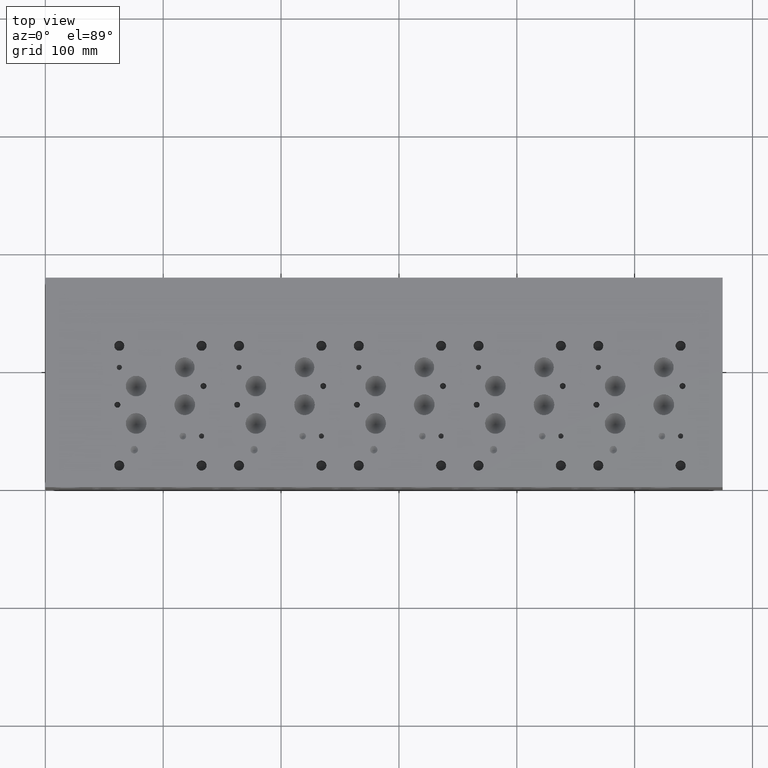
[diagram: clean part render]
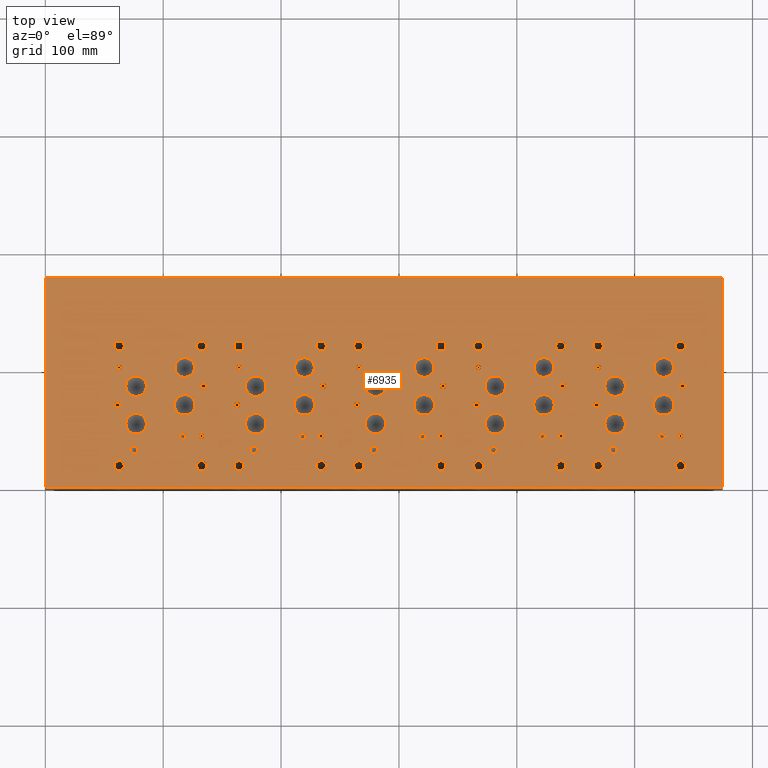
[diagram: same view with one face highlighted and labeled with its STEP entity id]
A machine part, top view. The second image highlights one B-rep face of the part: STEP entity #6935.
In plain terms, the highlighted planar face has unit normal (0, 0, 1).
Its self-contained STEP definition (entity closure, byte-faithful):
#247=CARTESIAN_POINT('',(525.86889999999994,43.2562,152.40000000000003));
#248=VERTEX_POINT('',#247);
#249=CARTESIAN_POINT('',(523.08759999999995,43.2562,152.40000000000003));
#250=DIRECTION('',(0.0,0.0,-1.0));
#251=DIRECTION('',(1.0,0.0,0.0));
#252=AXIS2_PLACEMENT_3D('',#249,#250,#251);
#253=CIRCLE('',#252,2.781299999999973);
#254=EDGE_CURVE('',#248,#248,#253,.T.);
#654=CARTESIAN_POINT('',(484.9622,31.750000000000004,152.40000000000003));
#655=VERTEX_POINT('',#654);
#656=CARTESIAN_POINT('',(481.78719999999998,31.750000000000004,152.40000000000003));
#657=DIRECTION('',(0.0,0.0,-1.0));
#658=DIRECTION('',(1.0,0.0,0.0));
#659=AXIS2_PLACEMENT_3D('',#656,#657,#658);
#660=CIRCLE('',#659,3.175000000000026);
#661=EDGE_CURVE('',#655,#655,#660,.T.);
#691=CARTESIAN_POINT('',(492.125,53.975000000000009,152.40000000000003));
#692=VERTEX_POINT('',#691);
#693=CARTESIAN_POINT('',(483.38740000000001,53.975000000000009,152.40000000000003));
#694=DIRECTION('',(0.0,0.0,-1.0));
#695=DIRECTION('',(1.0,0.0,0.0));
#696=AXIS2_PLACEMENT_3D('',#693,#694,#695);
#697=CIRCLE('',#696,8.737599999999972);
#698=EDGE_CURVE('',#692,#692,#697,.T.);
#728=CARTESIAN_POINT('',(492.125,85.724999999999994,152.40000000000003));
#729=VERTEX_POINT('',#728);
#730=CARTESIAN_POINT('',(483.38740000000001,85.724999999999994,152.40000000000003));
#731=DIRECTION('',(0.0,0.0,-1.0));
#732=DIRECTION('',(1.0,0.0,0.0));
#733=AXIS2_PLACEMENT_3D('',#730,#731,#732);
#734=CIRCLE('',#733,8.737599999999972);
#735=EDGE_CURVE('',#729,#729,#734,.T.);
#765=CARTESIAN_POINT('',(532.99360000000001,101.59999999999999,152.40000000000003));
#766=VERTEX_POINT('',#765);
#767=CARTESIAN_POINT('',(524.66240000000005,101.59999999999999,152.40000000000003));
#768=DIRECTION('',(0.0,0.0,-1.0));
#769=DIRECTION('',(1.0,0.0,0.0));
#770=AXIS2_PLACEMENT_3D('',#767,#768,#769);
#771=CIRCLE('',#770,8.33120000000001);
#772=EDGE_CURVE('',#766,#766,#771,.T.);
#802=CARTESIAN_POINT('',(533.40000000000009,69.849999999999994,152.40000000000003));
#803=VERTEX_POINT('',#802);
#804=CARTESIAN_POINT('',(524.66240000000005,69.849999999999994,152.40000000000003));
#805=DIRECTION('',(0.0,0.0,-1.0));
#806=DIRECTION('',(1.0,0.0,0.0));
#807=AXIS2_PLACEMENT_3D('',#804,#805,#806);
#808=CIRCLE('',#807,8.737599999999972);
#809=EDGE_CURVE('',#803,#803,#808,.T.);
#839=CARTESIAN_POINT('',(541.12160000000006,43.2562,152.40000000000003));
#840=VERTEX_POINT('',#839);
#841=CARTESIAN_POINT('',(538.93720000000008,43.2562,152.40000000000003));
#842=DIRECTION('',(0.0,0.0,-1.0));
#843=DIRECTION('',(1.0,0.0,0.0));
#844=AXIS2_PLACEMENT_3D('',#841,#842,#843);
#845=CIRCLE('',#844,2.184400000000011);
#846=EDGE_CURVE('',#840,#840,#845,.T.);
#876=CARTESIAN_POINT('',(471.27160000000003,101.59999999999999,152.40000000000003));
#877=VERTEX_POINT('',#876);
#878=CARTESIAN_POINT('',(469.08720000000005,101.59999999999999,152.40000000000003));
#879=DIRECTION('',(0.0,0.0,-1.0));
#880=DIRECTION('',(1.0,0.0,0.0));
#881=AXIS2_PLACEMENT_3D('',#878,#879,#880);
#882=CIRCLE('',#881,2.184400000000011);
#883=EDGE_CURVE('',#877,#877,#882,.T.);
#913=CARTESIAN_POINT('',(543.03930000000014,85.724999999999994,152.40000000000003));
#914=VERTEX_POINT('',#913);
#915=CARTESIAN_POINT('',(540.53740000000005,85.724999999999994,152.40000000000003));
#916=DIRECTION('',(0.0,0.0,-1.0));
#917=DIRECTION('',(1.0,0.0,0.0));
#918=AXIS2_PLACEMENT_3D('',#915,#916,#917);
#919=CIRCLE('',#918,2.501900000000035);
#920=EDGE_CURVE('',#914,#914,#919,.T.);
#950=CARTESIAN_POINT('',(470.01430000000005,69.849999999999994,152.40000000000003));
#951=VERTEX_POINT('',#950);
#952=CARTESIAN_POINT('',(467.51240000000001,69.849999999999994,152.40000000000003));
#953=DIRECTION('',(0.0,0.0,-1.0));
#954=DIRECTION('',(1.0,0.0,0.0));
#955=AXIS2_PLACEMENT_3D('',#952,#953,#954);
#956=CIRCLE('',#955,2.501900000000035);
#957=EDGE_CURVE('',#951,#951,#956,.T.);
#987=CARTESIAN_POINT('',(473.3417,18.262599999999999,152.40000000000003));
#988=VERTEX_POINT('',#987);
#989=CARTESIAN_POINT('',(469.08720000000005,18.262599999999999,152.40000000000003));
#990=DIRECTION('',(0.0,0.0,-1.0));
#991=DIRECTION('',(1.0,0.0,0.0));
#992=AXIS2_PLACEMENT_3D('',#989,#990,#991);
#993=CIRCLE('',#992,4.254499999999979);
#994=EDGE_CURVE('',#988,#988,#993,.T.);
#1024=CARTESIAN_POINT('',(543.19169999999997,18.262599999999999,152.40000000000003));
#1025=VERTEX_POINT('',#1024);
#1026=CARTESIAN_POINT('',(538.93720000000008,18.262599999999999,152.40000000000003));
#1027=DIRECTION('',(0.0,0.0,-1.0));
#1028=DIRECTION('',(1.0,0.0,0.0));
#1029=AXIS2_PLACEMENT_3D('',#1026,#1027,#1028);
#1030=CIRCLE('',#1029,4.254499999999979);
#1031=EDGE_CURVE('',#1025,#1025,#1030,.T.);
#1061=CARTESIAN_POINT('',(543.19169999999997,119.86260000000001,152.40000000000003));
#1062=VERTEX_POINT('',#1061);
#1063=CARTESIAN_POINT('',(538.93720000000008,119.86260000000001,152.40000000000003));
#1064=DIRECTION('',(0.0,0.0,-1.0));
#1065=DIRECTION('',(1.0,0.0,0.0));
#1066=AXIS2_PLACEMENT_3D('',#1063,#1064,#1065);
#1067=CIRCLE('',#1066,4.254499999999979);
#1068=EDGE_CURVE('',#1062,#1062,#1067,.T.);
#1098=CARTESIAN_POINT('',(473.3417,119.86260000000001,152.40000000000003));
#1099=VERTEX_POINT('',#1098);
#1100=CARTESIAN_POINT('',(469.08720000000005,119.86260000000001,152.40000000000003));
#1101=DIRECTION('',(0.0,0.0,-1.0));
#1102=DIRECTION('',(1.0,0.0,0.0));
#1103=AXIS2_PLACEMENT_3D('',#1100,#1101,#1102);
#1104=CIRCLE('',#1103,4.254499999999979);
#1105=EDGE_CURVE('',#1099,#1099,#1104,.T.);
#1292=CARTESIAN_POINT('',(424.26890000000003,43.2562,152.40000000000003));
#1293=VERTEX_POINT('',#1292);
#1294=CARTESIAN_POINT('',(421.48760000000004,43.2562,152.40000000000003));
#1295=DIRECTION('',(0.0,0.0,-1.0));
#1296=DIRECTION('',(1.0,0.0,0.0));
#1297=AXIS2_PLACEMENT_3D('',#1294,#1295,#1296);
#1298=CIRCLE('',#1297,2.781299999999973);
#1299=EDGE_CURVE('',#1293,#1293,#1298,.T.);
#1699=CARTESIAN_POINT('',(383.36220000000003,31.750000000000004,152.40000000000003));
#1700=VERTEX_POINT('',#1699);
#1701=CARTESIAN_POINT('',(380.18720000000002,31.750000000000004,152.40000000000003));
#1702=DIRECTION('',(0.0,0.0,-1.0));
#1703=DIRECTION('',(1.0,0.0,0.0));
#1704=AXIS2_PLACEMENT_3D('',#1701,#1702,#1703);
#1705=CIRCLE('',#1704,3.175000000000026);
#1706=EDGE_CURVE('',#1700,#1700,#1705,.T.);
#1736=CARTESIAN_POINT('',(390.52499999999998,53.975000000000009,152.40000000000003));
#1737=VERTEX_POINT('',#1736);
#1738=CARTESIAN_POINT('',(381.78739999999999,53.975000000000009,152.40000000000003));
#1739=DIRECTION('',(0.0,0.0,-1.0));
#1740=DIRECTION('',(1.0,0.0,0.0));
#1741=AXIS2_PLACEMENT_3D('',#1738,#1739,#1740);
#1742=CIRCLE('',#1741,8.737599999999972);
#1743=EDGE_CURVE('',#1737,#1737,#1742,.T.);
#1773=CARTESIAN_POINT('',(390.52499999999998,85.724999999999994,152.40000000000003));
#1774=VERTEX_POINT('',#1773);
#1775=CARTESIAN_POINT('',(381.78739999999999,85.724999999999994,152.40000000000003));
#1776=DIRECTION('',(0.0,0.0,-1.0));
#1777=DIRECTION('',(1.0,0.0,0.0));
#1778=AXIS2_PLACEMENT_3D('',#1775,#1776,#1777);
#1779=CIRCLE('',#1778,8.737599999999972);
#1780=EDGE_CURVE('',#1774,#1774,#1779,.T.);
#1810=CARTESIAN_POINT('',(431.39360000000005,101.59999999999999,152.40000000000003));
#1811=VERTEX_POINT('',#1810);
#1812=CARTESIAN_POINT('',(423.06240000000003,101.59999999999999,152.40000000000003));
#1813=DIRECTION('',(0.0,0.0,-1.0));
#1814=DIRECTION('',(1.0,0.0,0.0));
#1815=AXIS2_PLACEMENT_3D('',#1812,#1813,#1814);
#1816=CIRCLE('',#1815,8.33120000000001);
#1817=EDGE_CURVE('',#1811,#1811,#1816,.T.);
#1847=CARTESIAN_POINT('',(431.80000000000001,69.849999999999994,152.40000000000003));
#1848=VERTEX_POINT('',#1847);
#1849=CARTESIAN_POINT('',(423.06240000000003,69.849999999999994,152.40000000000003));
#1850=DIRECTION('',(0.0,0.0,-1.0));
#1851=DIRECTION('',(1.0,0.0,0.0));
#1852=AXIS2_PLACEMENT_3D('',#1849,#1850,#1851);
#1853=CIRCLE('',#1852,8.737599999999972);
#1854=EDGE_CURVE('',#1848,#1848,#1853,.T.);
#1884=CARTESIAN_POINT('',(439.52160000000003,43.2562,152.40000000000003));
#1885=VERTEX_POINT('',#1884);
#1886=CARTESIAN_POINT('',(437.33720000000005,43.2562,152.40000000000003));
#1887=DIRECTION('',(0.0,0.0,-1.0));
#1888=DIRECTION('',(1.0,0.0,0.0));
#1889=AXIS2_PLACEMENT_3D('',#1886,#1887,#1888);
#1890=CIRCLE('',#1889,2.184400000000011);
#1891=EDGE_CURVE('',#1885,#1885,#1890,.T.);
#1921=CARTESIAN_POINT('',(369.67160000000001,101.59999999999999,152.40000000000003));
#1922=VERTEX_POINT('',#1921);
#1923=CARTESIAN_POINT('',(367.48719999999997,101.59999999999999,152.40000000000003));
#1924=DIRECTION('',(0.0,0.0,-1.0));
#1925=DIRECTION('',(1.0,0.0,0.0));
#1926=AXIS2_PLACEMENT_3D('',#1923,#1924,#1925);
#1927=CIRCLE('',#1926,2.184400000000011);
#1928=EDGE_CURVE('',#1922,#1922,#1927,.T.);
#1958=CARTESIAN_POINT('',(441.43930000000012,85.724999999999994,152.40000000000003));
#1959=VERTEX_POINT('',#1958);
#1960=CARTESIAN_POINT('',(438.93740000000008,85.724999999999994,152.40000000000003));
#1961=DIRECTION('',(0.0,0.0,-1.0));
#1962=DIRECTION('',(1.0,0.0,0.0));
#1963=AXIS2_PLACEMENT_3D('',#1960,#1961,#1962);
#1964=CIRCLE('',#1963,2.501900000000035);
#1965=EDGE_CURVE('',#1959,#1959,#1964,.T.);
#1995=CARTESIAN_POINT('',(368.41430000000003,69.849999999999994,152.40000000000003));
#1996=VERTEX_POINT('',#1995);
#1997=CARTESIAN_POINT('',(365.91239999999999,69.849999999999994,152.40000000000003));
#1998=DIRECTION('',(0.0,0.0,-1.0));
#1999=DIRECTION('',(1.0,0.0,0.0));
#2000=AXIS2_PLACEMENT_3D('',#1997,#1998,#1999);
#2001=CIRCLE('',#2000,2.501900000000035);
#2002=EDGE_CURVE('',#1996,#1996,#2001,.T.);
#2032=CARTESIAN_POINT('',(371.74169999999998,18.262599999999999,152.40000000000003));
#2033=VERTEX_POINT('',#2032);
#2034=CARTESIAN_POINT('',(367.48719999999997,18.262599999999999,152.40000000000003));
#2035=DIRECTION('',(0.0,0.0,-1.0));
#2036=DIRECTION('',(1.0,0.0,0.0));
#2037=AXIS2_PLACEMENT_3D('',#2034,#2035,#2036);
#2038=CIRCLE('',#2037,4.254499999999979);
#2039=EDGE_CURVE('',#2033,#2033,#2038,.T.);
#2069=CARTESIAN_POINT('',(441.59170000000006,18.262599999999999,152.40000000000003));
#2070=VERTEX_POINT('',#2069);
#2071=CARTESIAN_POINT('',(437.33720000000005,18.262599999999999,152.40000000000003));
#2072=DIRECTION('',(0.0,0.0,-1.0));
#2073=DIRECTION('',(1.0,0.0,0.0));
#2074=AXIS2_PLACEMENT_3D('',#2071,#2072,#2073);
#2075=CIRCLE('',#2074,4.254499999999979);
#2076=EDGE_CURVE('',#2070,#2070,#2075,.T.);
#2106=CARTESIAN_POINT('',(441.59170000000006,119.86260000000001,152.40000000000003));
#2107=VERTEX_POINT('',#2106);
#2108=CARTESIAN_POINT('',(437.33720000000005,119.86260000000001,152.40000000000003));
#2109=DIRECTION('',(0.0,0.0,-1.0));
#2110=DIRECTION('',(1.0,0.0,0.0));
#2111=AXIS2_PLACEMENT_3D('',#2108,#2109,#2110);
#2112=CIRCLE('',#2111,4.254499999999979);
#2113=EDGE_CURVE('',#2107,#2107,#2112,.T.);
#2143=CARTESIAN_POINT('',(371.74169999999998,119.86260000000001,152.40000000000003));
#2144=VERTEX_POINT('',#2143);
#2145=CARTESIAN_POINT('',(367.48719999999997,119.86260000000001,152.40000000000003));
#2146=DIRECTION('',(0.0,0.0,-1.0));
#2147=DIRECTION('',(1.0,0.0,0.0));
#2148=AXIS2_PLACEMENT_3D('',#2145,#2146,#2147);
#2149=CIRCLE('',#2148,4.254499999999979);
#2150=EDGE_CURVE('',#2144,#2144,#2149,.T.);
#2337=CARTESIAN_POINT('',(322.66890000000001,43.2562,152.40000000000003));
#2338=VERTEX_POINT('',#2337);
#2339=CARTESIAN_POINT('',(319.88760000000002,43.2562,152.40000000000003));
#2340=DIRECTION('',(0.0,0.0,-1.0));
#2341=DIRECTION('',(1.0,0.0,0.0));
#2342=AXIS2_PLACEMENT_3D('',#2339,#2340,#2341);
#2343=CIRCLE('',#2342,2.781300000000009);
#2344=EDGE_CURVE('',#2338,#2338,#2343,.T.);
#2744=CARTESIAN_POINT('',(281.76220000000001,31.750000000000004,152.40000000000003));
#2745=VERTEX_POINT('',#2744);
#2746=CARTESIAN_POINT('',(278.5872,31.750000000000004,152.40000000000003));
#2747=DIRECTION('',(0.0,0.0,-1.0));
#2748=DIRECTION('',(1.0,0.0,0.0));
#2749=AXIS2_PLACEMENT_3D('',#2746,#2747,#2748);
#2750=CIRCLE('',#2749,3.17499999999999);
#2751=EDGE_CURVE('',#2745,#2745,#2750,.T.);
#2781=CARTESIAN_POINT('',(288.92500000000007,53.975000000000009,152.40000000000003));
#2782=VERTEX_POINT('',#2781);
#2783=CARTESIAN_POINT('',(280.18740000000003,53.975000000000009,152.40000000000003));
#2784=DIRECTION('',(0.0,0.0,-1.0));
#2785=DIRECTION('',(1.0,0.0,0.0));
#2786=AXIS2_PLACEMENT_3D('',#2783,#2784,#2785);
#2787=CIRCLE('',#2786,8.737600000000008);
#2788=EDGE_CURVE('',#2782,#2782,#2787,.T.);
#2818=CARTESIAN_POINT('',(288.92500000000007,85.724999999999994,152.40000000000003));
#2819=VERTEX_POINT('',#2818);
#2820=CARTESIAN_POINT('',(280.18740000000003,85.724999999999994,152.40000000000003));
#2821=DIRECTION('',(0.0,0.0,-1.0));
#2822=DIRECTION('',(1.0,0.0,0.0));
#2823=AXIS2_PLACEMENT_3D('',#2820,#2821,#2822);
#2824=CIRCLE('',#2823,8.737600000000008);
#2825=EDGE_CURVE('',#2819,#2819,#2824,.T.);
#2855=CARTESIAN_POINT('',(329.79359999999997,101.59999999999999,152.40000000000003));
#2856=VERTEX_POINT('',#2855);
#2857=CARTESIAN_POINT('',(321.4624,101.59999999999999,152.40000000000003));
#2858=DIRECTION('',(0.0,0.0,-1.0));
#2859=DIRECTION('',(1.0,0.0,0.0));
#2860=AXIS2_PLACEMENT_3D('',#2857,#2858,#2859);
#2861=CIRCLE('',#2860,8.33120000000001);
#2862=EDGE_CURVE('',#2856,#2856,#2861,.T.);
#2892=CARTESIAN_POINT('',(330.19999999999993,69.849999999999994,152.40000000000003));
#2893=VERTEX_POINT('',#2892);
#2894=CARTESIAN_POINT('',(321.4624,69.849999999999994,152.40000000000003));
#2895=DIRECTION('',(0.0,0.0,-1.0));
#2896=DIRECTION('',(1.0,0.0,0.0));
#2897=AXIS2_PLACEMENT_3D('',#2894,#2895,#2896);
#2898=CIRCLE('',#2897,8.737599999999972);
#2899=EDGE_CURVE('',#2893,#2893,#2898,.T.);
#2929=CARTESIAN_POINT('',(337.92160000000001,43.2562,152.40000000000003));
#2930=VERTEX_POINT('',#2929);
#2931=CARTESIAN_POINT('',(335.73720000000003,43.2562,152.40000000000003));
#2932=DIRECTION('',(0.0,0.0,-1.0));
#2933=DIRECTION('',(1.0,0.0,0.0));
#2934=AXIS2_PLACEMENT_3D('',#2931,#2932,#2933);
#2935=CIRCLE('',#2934,2.184400000000011);
#2936=EDGE_CURVE('',#2930,#2930,#2935,.T.);
#2966=CARTESIAN_POINT('',(268.07160000000005,101.59999999999999,152.40000000000003));
#2967=VERTEX_POINT('',#2966);
#2968=CARTESIAN_POINT('',(265.88720000000001,101.59999999999999,152.40000000000003));
#2969=DIRECTION('',(0.0,0.0,-1.0));
#2970=DIRECTION('',(1.0,0.0,0.0));
#2971=AXIS2_PLACEMENT_3D('',#2968,#2969,#2970);
#2972=CIRCLE('',#2971,2.184400000000011);
#2973=EDGE_CURVE('',#2967,#2967,#2972,.T.);
#3003=CARTESIAN_POINT('',(339.83930000000009,85.724999999999994,152.40000000000003));
#3004=VERTEX_POINT('',#3003);
#3005=CARTESIAN_POINT('',(337.33740000000006,85.724999999999994,152.40000000000003));
#3006=DIRECTION('',(0.0,0.0,-1.0));
#3007=DIRECTION('',(1.0,0.0,0.0));
#3008=AXIS2_PLACEMENT_3D('',#3005,#3006,#3007);
#3009=CIRCLE('',#3008,2.501900000000035);
#3010=EDGE_CURVE('',#3004,#3004,#3009,.T.);
#3040=CARTESIAN_POINT('',(266.8143,69.849999999999994,152.40000000000003));
#3041=VERTEX_POINT('',#3040);
#3042=CARTESIAN_POINT('',(264.31240000000003,69.849999999999994,152.40000000000003));
#3043=DIRECTION('',(0.0,0.0,-1.0));
#3044=DIRECTION('',(1.0,0.0,0.0));
#3045=AXIS2_PLACEMENT_3D('',#3042,#3043,#3044);
#3046=CIRCLE('',#3045,2.501899999999999);
#3047=EDGE_CURVE('',#3041,#3041,#3046,.T.);
#3077=CARTESIAN_POINT('',(270.14170000000001,18.262599999999999,152.40000000000003));
#3078=VERTEX_POINT('',#3077);
#3079=CARTESIAN_POINT('',(265.88720000000001,18.262599999999999,152.40000000000003));
#3080=DIRECTION('',(0.0,0.0,-1.0));
#3081=DIRECTION('',(1.0,0.0,0.0));
#3082=AXIS2_PLACEMENT_3D('',#3079,#3080,#3081);
#3083=CIRCLE('',#3082,4.254500000000014);
#3084=EDGE_CURVE('',#3078,#3078,#3083,.T.);
#3114=CARTESIAN_POINT('',(339.99169999999998,18.262599999999999,152.40000000000003));
#3115=VERTEX_POINT('',#3114);
#3116=CARTESIAN_POINT('',(335.73720000000003,18.262599999999999,152.40000000000003));
#3117=DIRECTION('',(0.0,0.0,-1.0));
#3118=DIRECTION('',(1.0,0.0,0.0));
#3119=AXIS2_PLACEMENT_3D('',#3116,#3117,#3118);
#3120=CIRCLE('',#3119,4.254499999999979);
#3121=EDGE_CURVE('',#3115,#3115,#3120,.T.);
#3151=CARTESIAN_POINT('',(339.99169999999998,119.86260000000001,152.40000000000003));
#3152=VERTEX_POINT('',#3151);
#3153=CARTESIAN_POINT('',(335.73720000000003,119.86260000000001,152.40000000000003));
#3154=DIRECTION('',(0.0,0.0,-1.0));
#3155=DIRECTION('',(1.0,0.0,0.0));
#3156=AXIS2_PLACEMENT_3D('',#3153,#3154,#3155);
#3157=CIRCLE('',#3156,4.254499999999979);
#3158=EDGE_CURVE('',#3152,#3152,#3157,.T.);
#3188=CARTESIAN_POINT('',(270.14170000000001,119.86260000000001,152.40000000000003));
#3189=VERTEX_POINT('',#3188);
#3190=CARTESIAN_POINT('',(265.88720000000001,119.86260000000001,152.40000000000003));
#3191=DIRECTION('',(0.0,0.0,-1.0));
#3192=DIRECTION('',(1.0,0.0,0.0));
#3193=AXIS2_PLACEMENT_3D('',#3190,#3191,#3192);
#3194=CIRCLE('',#3193,4.254500000000014);
#3195=EDGE_CURVE('',#3189,#3189,#3194,.T.);
#3382=CARTESIAN_POINT('',(221.06890000000004,43.2562,152.40000000000003));
#3383=VERTEX_POINT('',#3382);
#3384=CARTESIAN_POINT('',(218.28760000000003,43.2562,152.40000000000003));
#3385=DIRECTION('',(0.0,0.0,-1.0));
#3386=DIRECTION('',(1.0,0.0,0.0));
#3387=AXIS2_PLACEMENT_3D('',#3384,#3385,#3386);
#3388=CIRCLE('',#3387,2.781300000000009);
#3389=EDGE_CURVE('',#3383,#3383,#3388,.T.);
#3789=CARTESIAN_POINT('',(180.16220000000001,31.750000000000004,152.40000000000003));
#3790=VERTEX_POINT('',#3789);
#3791=CARTESIAN_POINT('',(176.98720000000003,31.750000000000004,152.40000000000003));
#3792=DIRECTION('',(0.0,0.0,-1.0));
#3793=DIRECTION('',(1.0,0.0,0.0));
#3794=AXIS2_PLACEMENT_3D('',#3791,#3792,#3793);
#3795=CIRCLE('',#3794,3.17499999999999);
#3796=EDGE_CURVE('',#3790,#3790,#3795,.T.);
#3826=CARTESIAN_POINT('',(187.32500000000002,53.975000000000009,152.40000000000003));
#3827=VERTEX_POINT('',#3826);
#3828=CARTESIAN_POINT('',(178.5874,53.975000000000009,152.40000000000003));
#3829=DIRECTION('',(0.0,0.0,-1.0));
#3830=DIRECTION('',(1.0,0.0,0.0));
#3831=AXIS2_PLACEMENT_3D('',#3828,#3829,#3830);
#3832=CIRCLE('',#3831,8.737600000000008);
#3833=EDGE_CURVE('',#3827,#3827,#3832,.T.);
#3863=CARTESIAN_POINT('',(187.32500000000002,85.724999999999994,152.40000000000003));
#3864=VERTEX_POINT('',#3863);
#3865=CARTESIAN_POINT('',(178.5874,85.724999999999994,152.40000000000003));
#3866=DIRECTION('',(0.0,0.0,-1.0));
#3867=DIRECTION('',(1.0,0.0,0.0));
#3868=AXIS2_PLACEMENT_3D('',#3865,#3866,#3867);
#3869=CIRCLE('',#3868,8.737600000000008);
#3870=EDGE_CURVE('',#3864,#3864,#3869,.T.);
#3900=CARTESIAN_POINT('',(228.19360000000003,101.59999999999999,152.40000000000003));
#3901=VERTEX_POINT('',#3900);
#3902=CARTESIAN_POINT('',(219.86240000000004,101.59999999999999,152.40000000000003));
#3903=DIRECTION('',(0.0,0.0,-1.0));
#3904=DIRECTION('',(1.0,0.0,0.0));
#3905=AXIS2_PLACEMENT_3D('',#3902,#3903,#3904);
#3906=CIRCLE('',#3905,8.33120000000001);
#3907=EDGE_CURVE('',#3901,#3901,#3906,.T.);
#3937=CARTESIAN_POINT('',(228.60000000000002,69.849999999999994,152.40000000000003));
#3938=VERTEX_POINT('',#3937);
#3939=CARTESIAN_POINT('',(219.86240000000004,69.849999999999994,152.40000000000003));
#3940=DIRECTION('',(0.0,0.0,-1.0));
#3941=DIRECTION('',(1.0,0.0,0.0));
#3942=AXIS2_PLACEMENT_3D('',#3939,#3940,#3941);
#3943=CIRCLE('',#3942,8.737600000000008);
#3944=EDGE_CURVE('',#3938,#3938,#3943,.T.);
#3974=CARTESIAN_POINT('',(236.32160000000002,43.2562,152.40000000000003));
#3975=VERTEX_POINT('',#3974);
#3976=CARTESIAN_POINT('',(234.13720000000001,43.2562,152.40000000000003));
#3977=DIRECTION('',(0.0,0.0,-1.0));
#3978=DIRECTION('',(1.0,0.0,0.0));
#3979=AXIS2_PLACEMENT_3D('',#3976,#3977,#3978);
#3980=CIRCLE('',#3979,2.184400000000011);
#3981=EDGE_CURVE('',#3975,#3975,#3980,.T.);
#4011=CARTESIAN_POINT('',(166.47160000000002,101.59999999999999,152.40000000000003));
#4012=VERTEX_POINT('',#4011);
#4013=CARTESIAN_POINT('',(164.28720000000001,101.59999999999999,152.40000000000003));
#4014=DIRECTION('',(0.0,0.0,-1.0));
#4015=DIRECTION('',(1.0,0.0,0.0));
#4016=AXIS2_PLACEMENT_3D('',#4013,#4014,#4015);
#4017=CIRCLE('',#4016,2.184400000000011);
#4018=EDGE_CURVE('',#4012,#4012,#4017,.T.);
#4048=CARTESIAN_POINT('',(238.23930000000001,85.724999999999994,152.40000000000003));
#4049=VERTEX_POINT('',#4048);
#4050=CARTESIAN_POINT('',(235.73740000000001,85.724999999999994,152.40000000000003));
#4051=DIRECTION('',(0.0,0.0,-1.0));
#4052=DIRECTION('',(1.0,0.0,0.0));
#4053=AXIS2_PLACEMENT_3D('',#4050,#4051,#4052);
#4054=CIRCLE('',#4053,2.501899999999999);
#4055=EDGE_CURVE('',#4049,#4049,#4054,.T.);
#4085=CARTESIAN_POINT('',(165.21430000000004,69.849999999999994,152.40000000000003));
#4086=VERTEX_POINT('',#4085);
#4087=CARTESIAN_POINT('',(162.71240000000003,69.849999999999994,152.40000000000003));
#4088=DIRECTION('',(0.0,0.0,-1.0));
#4089=DIRECTION('',(1.0,0.0,0.0));
#4090=AXIS2_PLACEMENT_3D('',#4087,#4088,#4089);
#4091=CIRCLE('',#4090,2.501899999999999);
#4092=EDGE_CURVE('',#4086,#4086,#4091,.T.);
#4122=CARTESIAN_POINT('',(168.54170000000005,18.262599999999999,152.40000000000003));
#4123=VERTEX_POINT('',#4122);
#4124=CARTESIAN_POINT('',(164.28720000000001,18.262599999999999,152.40000000000003));
#4125=DIRECTION('',(0.0,0.0,-1.0));
#4126=DIRECTION('',(1.0,0.0,0.0));
#4127=AXIS2_PLACEMENT_3D('',#4124,#4125,#4126);
#4128=CIRCLE('',#4127,4.254500000000014);
#4129=EDGE_CURVE('',#4123,#4123,#4128,.T.);
#4159=CARTESIAN_POINT('',(238.39170000000001,18.262599999999999,152.40000000000003));
#4160=VERTEX_POINT('',#4159);
#4161=CARTESIAN_POINT('',(234.13720000000001,18.262599999999999,152.40000000000003));
#4162=DIRECTION('',(0.0,0.0,-1.0));
#4163=DIRECTION('',(1.0,0.0,0.0));
#4164=AXIS2_PLACEMENT_3D('',#4161,#4162,#4163);
#4165=CIRCLE('',#4164,4.254500000000014);
#4166=EDGE_CURVE('',#4160,#4160,#4165,.T.);
#4196=CARTESIAN_POINT('',(238.39170000000001,119.86260000000001,152.40000000000003));
#4197=VERTEX_POINT('',#4196);
#4198=CARTESIAN_POINT('',(234.13720000000001,119.86260000000001,152.40000000000003));
#4199=DIRECTION('',(0.0,0.0,-1.0));
#4200=DIRECTION('',(1.0,0.0,0.0));
#4201=AXIS2_PLACEMENT_3D('',#4198,#4199,#4200);
#4202=CIRCLE('',#4201,4.254500000000014);
#4203=EDGE_CURVE('',#4197,#4197,#4202,.T.);
#4233=CARTESIAN_POINT('',(168.54170000000005,119.86260000000001,152.40000000000003));
#4234=VERTEX_POINT('',#4233);
#4235=CARTESIAN_POINT('',(164.28720000000001,119.86260000000001,152.40000000000003));
#4236=DIRECTION('',(0.0,0.0,-1.0));
#4237=DIRECTION('',(1.0,0.0,0.0));
#4238=AXIS2_PLACEMENT_3D('',#4235,#4236,#4237);
#4239=CIRCLE('',#4238,4.254500000000014);
#4240=EDGE_CURVE('',#4234,#4234,#4239,.T.);
#4427=CARTESIAN_POINT('',(119.46889999999999,43.2562,152.40000000000003));
#4428=VERTEX_POINT('',#4427);
#4429=CARTESIAN_POINT('',(116.6876,43.2562,152.40000000000003));
#4430=DIRECTION('',(0.0,0.0,-1.0));
#4431=DIRECTION('',(1.0,0.0,0.0));
#4432=AXIS2_PLACEMENT_3D('',#4429,#4430,#4431);
#4433=CIRCLE('',#4432,2.781299999999991);
#4434=EDGE_CURVE('',#4428,#4428,#4433,.T.);
#4991=CARTESIAN_POINT('',(78.562200000000018,31.750000000000004,152.40000000000003));
#4992=VERTEX_POINT('',#4991);
#4993=CARTESIAN_POINT('',(75.387200000000007,31.750000000000004,152.40000000000003));
#4994=DIRECTION('',(0.0,0.0,-1.0));
#4995=DIRECTION('',(1.0,0.0,0.0));
#4996=AXIS2_PLACEMENT_3D('',#4993,#4994,#4995);
#4997=CIRCLE('',#4996,3.174999999999999);
#4998=EDGE_CURVE('',#4992,#4992,#4997,.T.);
#5028=CARTESIAN_POINT('',(85.724999999999994,53.975000000000009,152.40000000000003));
#5029=VERTEX_POINT('',#5028);
#5030=CARTESIAN_POINT('',(76.987399999999994,53.975000000000009,152.40000000000003));
#5031=DIRECTION('',(0.0,0.0,-1.0));
#5032=DIRECTION('',(1.0,0.0,0.0));
#5033=AXIS2_PLACEMENT_3D('',#5030,#5031,#5032);
#5034=CIRCLE('',#5033,8.737599999999999);
#5035=EDGE_CURVE('',#5029,#5029,#5034,.T.);
#5065=CARTESIAN_POINT('',(85.724999999999994,85.724999999999994,152.40000000000003));
#5066=VERTEX_POINT('',#5065);
#5067=CARTESIAN_POINT('',(76.987399999999994,85.724999999999994,152.40000000000003));
#5068=DIRECTION('',(0.0,0.0,-1.0));
#5069=DIRECTION('',(1.0,0.0,0.0));
#5070=AXIS2_PLACEMENT_3D('',#5067,#5068,#5069);
#5071=CIRCLE('',#5070,8.737599999999999);
#5072=EDGE_CURVE('',#5066,#5066,#5071,.T.);
#5102=CARTESIAN_POINT('',(126.5936,101.59999999999999,152.40000000000003));
#5103=VERTEX_POINT('',#5102);
#5104=CARTESIAN_POINT('',(118.2624,101.59999999999999,152.40000000000003));
#5105=DIRECTION('',(0.0,0.0,-1.0));
#5106=DIRECTION('',(1.0,0.0,0.0));
#5107=AXIS2_PLACEMENT_3D('',#5104,#5105,#5106);
#5108=CIRCLE('',#5107,8.331199999999992);
#5109=EDGE_CURVE('',#5103,#5103,#5108,.T.);
#5139=CARTESIAN_POINT('',(127.00000000000001,69.849999999999994,152.40000000000003));
#5140=VERTEX_POINT('',#5139);
#5141=CARTESIAN_POINT('',(118.2624,69.849999999999994,152.40000000000003));
#5142=DIRECTION('',(0.0,0.0,-1.0));
#5143=DIRECTION('',(1.0,0.0,0.0));
#5144=AXIS2_PLACEMENT_3D('',#5141,#5142,#5143);
#5145=CIRCLE('',#5144,8.737600000000008);
#5146=EDGE_CURVE('',#5140,#5140,#5145,.T.);
#5176=CARTESIAN_POINT('',(134.7216,43.2562,152.40000000000003));
#5177=VERTEX_POINT('',#5176);
#5178=CARTESIAN_POINT('',(132.53720000000001,43.2562,152.40000000000003));
#5179=DIRECTION('',(0.0,0.0,-1.0));
#5180=DIRECTION('',(1.0,0.0,0.0));
#5181=AXIS2_PLACEMENT_3D('',#5178,#5179,#5180);
#5182=CIRCLE('',#5181,2.184399999999993);
#5183=EDGE_CURVE('',#5177,#5177,#5182,.T.);
#5213=CARTESIAN_POINT('',(64.871600000000001,101.59999999999999,152.40000000000003));
#5214=VERTEX_POINT('',#5213);
#5215=CARTESIAN_POINT('',(62.687200000000004,101.59999999999999,152.40000000000003));
#5216=DIRECTION('',(0.0,0.0,-1.0));
#5217=DIRECTION('',(1.0,0.0,0.0));
#5218=AXIS2_PLACEMENT_3D('',#5215,#5216,#5217);
#5219=CIRCLE('',#5218,2.184400000000002);
#5220=EDGE_CURVE('',#5214,#5214,#5219,.T.);
#5250=CARTESIAN_POINT('',(136.63930000000002,85.724999999999994,152.40000000000003));
#5251=VERTEX_POINT('',#5250);
#5252=CARTESIAN_POINT('',(134.13740000000001,85.724999999999994,152.40000000000003));
#5253=DIRECTION('',(0.0,0.0,-1.0));
#5254=DIRECTION('',(1.0,0.0,0.0));
#5255=AXIS2_PLACEMENT_3D('',#5252,#5253,#5254);
#5256=CIRCLE('',#5255,2.501899999999999);
#5257=EDGE_CURVE('',#5251,#5251,#5256,.T.);
#5287=CARTESIAN_POINT('',(63.6143,69.849999999999994,152.40000000000003));
#5288=VERTEX_POINT('',#5287);
#5289=CARTESIAN_POINT('',(61.112400000000008,69.849999999999994,152.40000000000003));
#5290=DIRECTION('',(0.0,0.0,-1.0));
#5291=DIRECTION('',(1.0,0.0,0.0));
#5292=AXIS2_PLACEMENT_3D('',#5289,#5290,#5291);
#5293=CIRCLE('',#5292,2.501899999999999);
#5294=EDGE_CURVE('',#5288,#5288,#5293,.T.);
#5324=CARTESIAN_POINT('',(66.941699999999997,18.262599999999999,152.40000000000003));
#5325=VERTEX_POINT('',#5324);
#5326=CARTESIAN_POINT('',(62.687200000000004,18.262599999999999,152.40000000000003));
#5327=DIRECTION('',(0.0,0.0,-1.0));
#5328=DIRECTION('',(1.0,0.0,0.0));
#5329=AXIS2_PLACEMENT_3D('',#5326,#5327,#5328);
#5330=CIRCLE('',#5329,4.254499999999997);
#5331=EDGE_CURVE('',#5325,#5325,#5330,.T.);
#5361=CARTESIAN_POINT('',(136.79170000000002,18.262599999999999,152.40000000000003));
#5362=VERTEX_POINT('',#5361);
#5363=CARTESIAN_POINT('',(132.53720000000001,18.262599999999999,152.40000000000003));
#5364=DIRECTION('',(0.0,0.0,-1.0));
#5365=DIRECTION('',(1.0,0.0,0.0));
#5366=AXIS2_PLACEMENT_3D('',#5363,#5364,#5365);
#5367=CIRCLE('',#5366,4.254499999999997);
#5368=EDGE_CURVE('',#5362,#5362,#5367,.T.);
#5398=CARTESIAN_POINT('',(136.79170000000002,119.86260000000001,152.40000000000003));
#5399=VERTEX_POINT('',#5398);
#5400=CARTESIAN_POINT('',(132.53720000000001,119.86260000000001,152.40000000000003));
#5401=DIRECTION('',(0.0,0.0,-1.0));
#5402=DIRECTION('',(1.0,0.0,0.0));
#5403=AXIS2_PLACEMENT_3D('',#5400,#5401,#5402);
#5404=CIRCLE('',#5403,4.254499999999997);
#5405=EDGE_CURVE('',#5399,#5399,#5404,.T.);
#5435=CARTESIAN_POINT('',(66.941699999999997,119.86260000000001,152.40000000000003));
#5436=VERTEX_POINT('',#5435);
#5437=CARTESIAN_POINT('',(62.687200000000004,119.86260000000001,152.40000000000003));
#5438=DIRECTION('',(0.0,0.0,-1.0));
#5439=DIRECTION('',(1.0,0.0,0.0));
#5440=AXIS2_PLACEMENT_3D('',#5437,#5438,#5439);
#5441=CIRCLE('',#5440,4.254499999999997);
#5442=EDGE_CURVE('',#5436,#5436,#5441,.T.);
#6343=CARTESIAN_POINT('',(0.0,0.0,152.40000000000003));
#6344=VERTEX_POINT('',#6343);
#6345=CARTESIAN_POINT('',(0.0,177.80000000000001,152.40000000000003));
#6346=VERTEX_POINT('',#6345);
#6347=CARTESIAN_POINT('',(0.0,0.0,152.40000000000003));
#6348=DIRECTION('',(0.0,1.0,0.0));
#6349=VECTOR('',#6348,177.80000000000001);
#6350=LINE('',#6347,#6349);
#6351=EDGE_CURVE('',#6344,#6346,#6350,.T.);
#6419=CARTESIAN_POINT('',(574.67499999999995,177.80000000000001,152.40000000000003));
#6420=VERTEX_POINT('',#6419);
#6421=CARTESIAN_POINT('',(0.0,177.80000000000001,152.40000000000003));
#6422=DIRECTION('',(1.0,0.0,0.0));
#6423=VECTOR('',#6422,574.67499999999995);
#6424=LINE('',#6421,#6423);
#6425=EDGE_CURVE('',#6346,#6420,#6424,.T.);
#6450=CARTESIAN_POINT('',(574.67499999999995,0.0,152.40000000000003));
#6451=VERTEX_POINT('',#6450);
#6452=CARTESIAN_POINT('',(574.67499999999995,177.80000000000001,152.40000000000003));
#6453=DIRECTION('',(0.0,-1.0,0.0));
#6454=VECTOR('',#6453,177.80000000000001);
#6455=LINE('',#6452,#6454);
#6456=EDGE_CURVE('',#6420,#6451,#6455,.T.);
#6517=CARTESIAN_POINT('',(574.67499999999995,0.0,152.40000000000003));
#6518=DIRECTION('',(-1.0,0.0,0.0));
#6519=VECTOR('',#6518,574.67499999999995);
#6520=LINE('',#6517,#6519);
#6521=EDGE_CURVE('',#6451,#6344,#6520,.T.);
#6714=CARTESIAN_POINT('',(287.33750000000009,88.900000000000006,152.40000000000003));
#6715=DIRECTION('',(0.0,0.0,1.0));
#6716=DIRECTION('',(1.0,0.0,0.0));
#6717=AXIS2_PLACEMENT_3D('',#6714,#6715,#6716);
#6718=PLANE('',#6717);
#6719=ORIENTED_EDGE('',*,*,#6351,.F.);
#6720=ORIENTED_EDGE('',*,*,#6521,.F.);
#6721=ORIENTED_EDGE('',*,*,#6456,.F.);
#6722=ORIENTED_EDGE('',*,*,#6425,.F.);
#6723=EDGE_LOOP('',(#6719,#6720,#6721,#6722));
#6724=FACE_OUTER_BOUND('',#6723,.T.);
#6725=ORIENTED_EDGE('',*,*,#254,.T.);
#6726=EDGE_LOOP('',(#6725));
#6727=FACE_BOUND('',#6726,.T.);
#6728=ORIENTED_EDGE('',*,*,#661,.T.);
#6729=EDGE_LOOP('',(#6728));
#6730=FACE_BOUND('',#6729,.T.);
#6731=ORIENTED_EDGE('',*,*,#698,.T.);
#6732=EDGE_LOOP('',(#6731));
#6733=FACE_BOUND('',#6732,.T.);
#6734=ORIENTED_EDGE('',*,*,#735,.T.);
#6735=EDGE_LOOP('',(#6734));
#6736=FACE_BOUND('',#6735,.T.);
#6737=ORIENTED_EDGE('',*,*,#772,.T.);
#6738=EDGE_LOOP('',(#6737));
#6739=FACE_BOUND('',#6738,.T.);
#6740=ORIENTED_EDGE('',*,*,#809,.T.);
#6741=EDGE_LOOP('',(#6740));
#6742=FACE_BOUND('',#6741,.T.);
#6743=ORIENTED_EDGE('',*,*,#846,.T.);
#6744=EDGE_LOOP('',(#6743));
#6745=FACE_BOUND('',#6744,.T.);
#6746=ORIENTED_EDGE('',*,*,#883,.T.);
#6747=EDGE_LOOP('',(#6746));
#6748=FACE_BOUND('',#6747,.T.);
#6749=ORIENTED_EDGE('',*,*,#920,.T.);
#6750=EDGE_LOOP('',(#6749));
#6751=FACE_BOUND('',#6750,.T.);
#6752=ORIENTED_EDGE('',*,*,#957,.T.);
#6753=EDGE_LOOP('',(#6752));
#6754=FACE_BOUND('',#6753,.T.);
#6755=ORIENTED_EDGE('',*,*,#994,.T.);
#6756=EDGE_LOOP('',(#6755));
#6757=FACE_BOUND('',#6756,.T.);
#6758=ORIENTED_EDGE('',*,*,#1031,.T.);
#6759=EDGE_LOOP('',(#6758));
#6760=FACE_BOUND('',#6759,.T.);
#6761=ORIENTED_EDGE('',*,*,#1068,.T.);
#6762=EDGE_LOOP('',(#6761));
#6763=FACE_BOUND('',#6762,.T.);
#6764=ORIENTED_EDGE('',*,*,#1105,.T.);
#6765=EDGE_LOOP('',(#6764));
#6766=FACE_BOUND('',#6765,.T.);
#6767=ORIENTED_EDGE('',*,*,#1299,.T.);
#6768=EDGE_LOOP('',(#6767));
#6769=FACE_BOUND('',#6768,.T.);
#6770=ORIENTED_EDGE('',*,*,#1706,.T.);
#6771=EDGE_LOOP('',(#6770));
#6772=FACE_BOUND('',#6771,.T.);
#6773=ORIENTED_EDGE('',*,*,#1743,.T.);
#6774=EDGE_LOOP('',(#6773));
#6775=FACE_BOUND('',#6774,.T.);
#6776=ORIENTED_EDGE('',*,*,#1780,.T.);
#6777=EDGE_LOOP('',(#6776));
#6778=FACE_BOUND('',#6777,.T.);
#6779=ORIENTED_EDGE('',*,*,#1817,.T.);
#6780=EDGE_LOOP('',(#6779));
#6781=FACE_BOUND('',#6780,.T.);
#6782=ORIENTED_EDGE('',*,*,#1854,.T.);
#6783=EDGE_LOOP('',(#6782));
#6784=FACE_BOUND('',#6783,.T.);
#6785=ORIENTED_EDGE('',*,*,#1891,.T.);
#6786=EDGE_LOOP('',(#6785));
#6787=FACE_BOUND('',#6786,.T.);
#6788=ORIENTED_EDGE('',*,*,#1928,.T.);
#6789=EDGE_LOOP('',(#6788));
#6790=FACE_BOUND('',#6789,.T.);
#6791=ORIENTED_EDGE('',*,*,#1965,.T.);
#6792=EDGE_LOOP('',(#6791));
#6793=FACE_BOUND('',#6792,.T.);
#6794=ORIENTED_EDGE('',*,*,#2002,.T.);
#6795=EDGE_LOOP('',(#6794));
#6796=FACE_BOUND('',#6795,.T.);
#6797=ORIENTED_EDGE('',*,*,#2039,.T.);
#6798=EDGE_LOOP('',(#6797));
#6799=FACE_BOUND('',#6798,.T.);
#6800=ORIENTED_EDGE('',*,*,#2076,.T.);
#6801=EDGE_LOOP('',(#6800));
#6802=FACE_BOUND('',#6801,.T.);
#6803=ORIENTED_EDGE('',*,*,#2113,.T.);
#6804=EDGE_LOOP('',(#6803));
#6805=FACE_BOUND('',#6804,.T.);
#6806=ORIENTED_EDGE('',*,*,#2150,.T.);
#6807=EDGE_LOOP('',(#6806));
#6808=FACE_BOUND('',#6807,.T.);
#6809=ORIENTED_EDGE('',*,*,#2344,.T.);
#6810=EDGE_LOOP('',(#6809));
#6811=FACE_BOUND('',#6810,.T.);
#6812=ORIENTED_EDGE('',*,*,#2751,.T.);
#6813=EDGE_LOOP('',(#6812));
#6814=FACE_BOUND('',#6813,.T.);
#6815=ORIENTED_EDGE('',*,*,#2788,.T.);
#6816=EDGE_LOOP('',(#6815));
#6817=FACE_BOUND('',#6816,.T.);
#6818=ORIENTED_EDGE('',*,*,#2825,.T.);
#6819=EDGE_LOOP('',(#6818));
#6820=FACE_BOUND('',#6819,.T.);
#6821=ORIENTED_EDGE('',*,*,#2862,.T.);
#6822=EDGE_LOOP('',(#6821));
#6823=FACE_BOUND('',#6822,.T.);
#6824=ORIENTED_EDGE('',*,*,#2899,.T.);
#6825=EDGE_LOOP('',(#6824));
#6826=FACE_BOUND('',#6825,.T.);
#6827=ORIENTED_EDGE('',*,*,#2936,.T.);
#6828=EDGE_LOOP('',(#6827));
#6829=FACE_BOUND('',#6828,.T.);
#6830=ORIENTED_EDGE('',*,*,#2973,.T.);
#6831=EDGE_LOOP('',(#6830));
#6832=FACE_BOUND('',#6831,.T.);
#6833=ORIENTED_EDGE('',*,*,#3010,.T.);
#6834=EDGE_LOOP('',(#6833));
#6835=FACE_BOUND('',#6834,.T.);
#6836=ORIENTED_EDGE('',*,*,#3047,.T.);
#6837=EDGE_LOOP('',(#6836));
#6838=FACE_BOUND('',#6837,.T.);
#6839=ORIENTED_EDGE('',*,*,#3084,.T.);
#6840=EDGE_LOOP('',(#6839));
#6841=FACE_BOUND('',#6840,.T.);
#6842=ORIENTED_EDGE('',*,*,#3121,.T.);
#6843=EDGE_LOOP('',(#6842));
#6844=FACE_BOUND('',#6843,.T.);
#6845=ORIENTED_EDGE('',*,*,#3158,.T.);
#6846=EDGE_LOOP('',(#6845));
#6847=FACE_BOUND('',#6846,.T.);
#6848=ORIENTED_EDGE('',*,*,#3195,.T.);
#6849=EDGE_LOOP('',(#6848));
#6850=FACE_BOUND('',#6849,.T.);
#6851=ORIENTED_EDGE('',*,*,#3389,.T.);
#6852=EDGE_LOOP('',(#6851));
#6853=FACE_BOUND('',#6852,.T.);
#6854=ORIENTED_EDGE('',*,*,#3796,.T.);
#6855=EDGE_LOOP('',(#6854));
#6856=FACE_BOUND('',#6855,.T.);
#6857=ORIENTED_EDGE('',*,*,#3833,.T.);
#6858=EDGE_LOOP('',(#6857));
#6859=FACE_BOUND('',#6858,.T.);
#6860=ORIENTED_EDGE('',*,*,#3870,.T.);
#6861=EDGE_LOOP('',(#6860));
#6862=FACE_BOUND('',#6861,.T.);
#6863=ORIENTED_EDGE('',*,*,#3907,.T.);
#6864=EDGE_LOOP('',(#6863));
#6865=FACE_BOUND('',#6864,.T.);
#6866=ORIENTED_EDGE('',*,*,#3944,.T.);
#6867=EDGE_LOOP('',(#6866));
#6868=FACE_BOUND('',#6867,.T.);
#6869=ORIENTED_EDGE('',*,*,#3981,.T.);
#6870=EDGE_LOOP('',(#6869));
#6871=FACE_BOUND('',#6870,.T.);
#6872=ORIENTED_EDGE('',*,*,#4018,.T.);
#6873=EDGE_LOOP('',(#6872));
#6874=FACE_BOUND('',#6873,.T.);
#6875=ORIENTED_EDGE('',*,*,#4055,.T.);
#6876=EDGE_LOOP('',(#6875));
#6877=FACE_BOUND('',#6876,.T.);
#6878=ORIENTED_EDGE('',*,*,#4092,.T.);
#6879=EDGE_LOOP('',(#6878));
#6880=FACE_BOUND('',#6879,.T.);
#6881=ORIENTED_EDGE('',*,*,#4129,.T.);
#6882=EDGE_LOOP('',(#6881));
#6883=FACE_BOUND('',#6882,.T.);
#6884=ORIENTED_EDGE('',*,*,#4166,.T.);
#6885=EDGE_LOOP('',(#6884));
#6886=FACE_BOUND('',#6885,.T.);
#6887=ORIENTED_EDGE('',*,*,#4203,.T.);
#6888=EDGE_LOOP('',(#6887));
#6889=FACE_BOUND('',#6888,.T.);
#6890=ORIENTED_EDGE('',*,*,#4240,.T.);
#6891=EDGE_LOOP('',(#6890));
#6892=FACE_BOUND('',#6891,.T.);
#6893=ORIENTED_EDGE('',*,*,#4434,.T.);
#6894=EDGE_LOOP('',(#6893));
#6895=FACE_BOUND('',#6894,.T.);
#6896=ORIENTED_EDGE('',*,*,#4998,.T.);
#6897=EDGE_LOOP('',(#6896));
#6898=FACE_BOUND('',#6897,.T.);
#6899=ORIENTED_EDGE('',*,*,#5035,.T.);
#6900=EDGE_LOOP('',(#6899));
#6901=FACE_BOUND('',#6900,.T.);
#6902=ORIENTED_EDGE('',*,*,#5072,.T.);
#6903=EDGE_LOOP('',(#6902));
#6904=FACE_BOUND('',#6903,.T.);
#6905=ORIENTED_EDGE('',*,*,#5109,.T.);
#6906=EDGE_LOOP('',(#6905));
#6907=FACE_BOUND('',#6906,.T.);
#6908=ORIENTED_EDGE('',*,*,#5146,.T.);
#6909=EDGE_LOOP('',(#6908));
#6910=FACE_BOUND('',#6909,.T.);
#6911=ORIENTED_EDGE('',*,*,#5183,.T.);
#6912=EDGE_LOOP('',(#6911));
#6913=FACE_BOUND('',#6912,.T.);
#6914=ORIENTED_EDGE('',*,*,#5220,.T.);
#6915=EDGE_LOOP('',(#6914));
#6916=FACE_BOUND('',#6915,.T.);
#6917=ORIENTED_EDGE('',*,*,#5257,.T.);
#6918=EDGE_LOOP('',(#6917));
#6919=FACE_BOUND('',#6918,.T.);
#6920=ORIENTED_EDGE('',*,*,#5294,.T.);
#6921=EDGE_LOOP('',(#6920));
#6922=FACE_BOUND('',#6921,.T.);
#6923=ORIENTED_EDGE('',*,*,#5331,.T.);
#6924=EDGE_LOOP('',(#6923));
#6925=FACE_BOUND('',#6924,.T.);
#6926=ORIENTED_EDGE('',*,*,#5368,.T.);
#6927=EDGE_LOOP('',(#6926));
#6928=FACE_BOUND('',#6927,.T.);
#6929=ORIENTED_EDGE('',*,*,#5405,.T.);
#6930=EDGE_LOOP('',(#6929));
#6931=FACE_BOUND('',#6930,.T.);
#6932=ORIENTED_EDGE('',*,*,#5442,.T.);
#6933=EDGE_LOOP('',(#6932));
#6934=FACE_BOUND('',#6933,.T.);
#6935=ADVANCED_FACE('',(#6724,#6727,#6730,#6733,#6736,#6739,#6742,#6745,#6748,#6751,#6754,#6757,#6760,#6763,#6766,#6769,#6772,#6775,#6778,#6781,#6784,#6787,#6790,#6793,#6796,#6799,#6802,#6805,#6808,#6811,#6814,#6817,#6820,#6823,#6826,#6829,#6832,#6835,#6838,#6841,#6844,#6847,#6850,#6853,#6856,#6859,#6862,#6865,#6868,#6871,#6874,#6877,#6880,#6883,#6886,#6889,#6892,#6895,#6898,#6901,#6904,#6907,#6910,#6913,#6916,#6919,#6922,#6925,#6928,#6931,#6934),#6718,.T.);